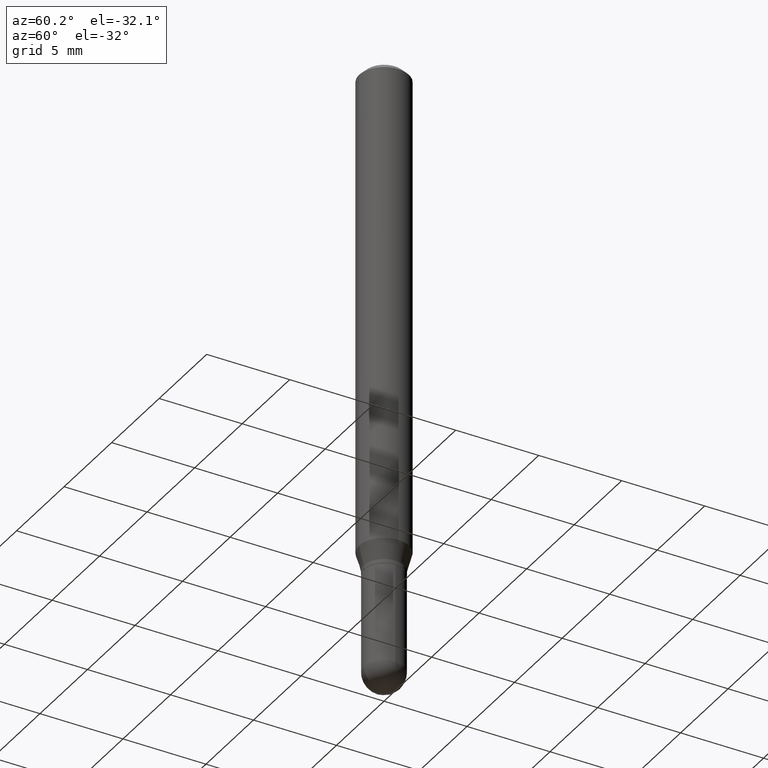
[diagram: clean part render]
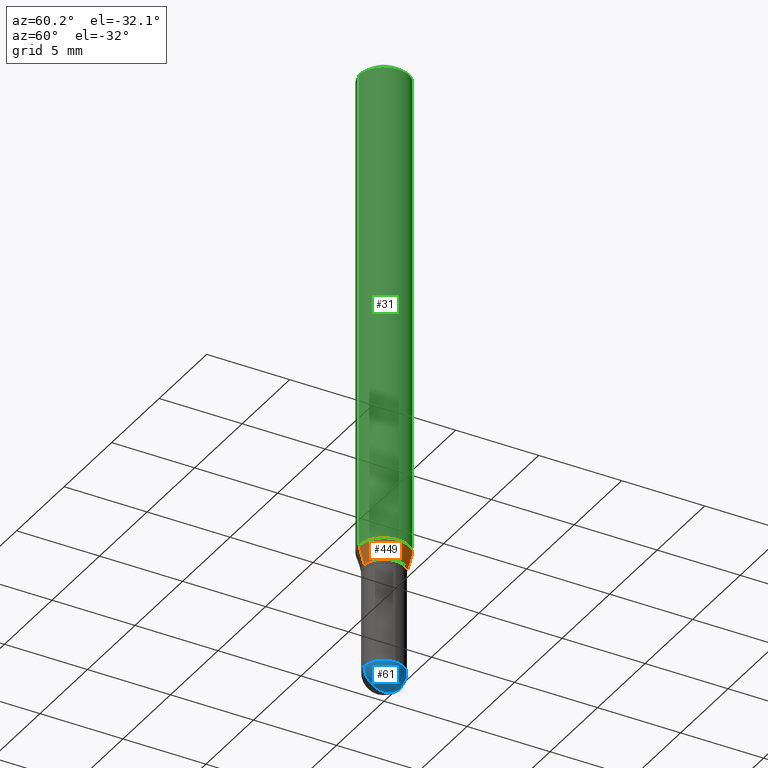
[diagram: same view with three faces highlighted in distinct colors, each labeled with its STEP entity id]
A machine part, auxiliary view with three faces highlighted in distinct colors.
Their STEP definitions:

[orange] entity #449 — the highlighted conical surface has half-angle 15 deg.
#8 = VERTEX_POINT ( 'NONE', #29 ) ;
#29 = CARTESIAN_POINT ( 'NONE',  ( 3.776534640565222593E-16, 0.04724999999999585781, -1.202600000000000113 ) ) ;
#33 = CARTESIAN_POINT ( 'NONE',  ( -4.123439461173456337E-16, -0.05905000000000405758, -1.158561800470687464 ) ) ;
#37 = CARTESIAN_POINT ( 'NONE',  ( -3.299449865206470168E-16, -0.04725000000000425388, -1.202599999999999669 ) ) ;
#53 = DIRECTION ( 'NONE',  ( -6.982962677686265922E-15, -1.000000000000000000, 4.626330217890369336E-15 ) ) ;
#66 = ORIENTED_EDGE ( 'NONE', *, *, #120, .F. ) ;
#93 = CARTESIAN_POINT ( 'NONE',  ( 2.833153081835456762E-29, -4.045202393347182480E-15, -1.158561800470687464 ) ) ;
#95 = VERTEX_POINT ( 'NONE', #37 ) ;
#96 = CARTESIAN_POINT ( 'NONE',  ( 2.940844325120249058E-29, -4.198964954880197857E-15, -1.202599999999999891 ) ) ;
#108 = AXIS2_PLACEMENT_3D ( 'NONE', #157, #222, #333 ) ;
#118 = VECTOR ( 'NONE', #335, 39.37007874015748854 ) ;
#120 = EDGE_CURVE ( 'NONE', #95, #282, #403, .T. ) ;
#140 = CARTESIAN_POINT ( 'NONE',  ( 3.357314426466771197E-16, 0.04724999999999585781, -1.202600000000000113 ) ) ;
#152 = LINE ( 'NONE', #140, #118 ) ;
#157 = CARTESIAN_POINT ( 'NONE',  ( 2.940844325120249058E-29, -4.198964954880197857E-15, -1.202599999999999891 ) ) ;
#165 = CIRCLE ( 'NONE', #108, 0.04725000000000005584 ) ;
#212 = CIRCLE ( 'NONE', #278, 0.05904999999999999832 ) ;
#222 = DIRECTION ( 'NONE',  ( -2.445405226276608487E-29, 3.491572388890901817E-15, 1.000000000000000000 ) ) ;
#238 = CONICAL_SURFACE ( 'NONE', #259, 0.04725000000000005584, 0.2617993877991504625 ) ;
#244 = DIRECTION ( 'NONE',  ( -2.445405226276608487E-29, 3.491572388890901817E-15, 1.000000000000000000 ) ) ;
#259 = AXIS2_PLACEMENT_3D ( 'NONE', #96, #244, #481 ) ;
#278 = AXIS2_PLACEMENT_3D ( 'NONE', #93, #392, #53 ) ;
#282 = VERTEX_POINT ( 'NONE', #33 ) ;
#300 = CARTESIAN_POINT ( 'NONE',  ( -3.299449865206470168E-16, -0.04725000000000425388, -1.202599999999999669 ) ) ;
#307 = CARTESIAN_POINT ( 'NONE',  ( 4.195754854663673496E-16, 0.05904999999999594601, -1.158561800470687686 ) ) ;
#318 = VECTOR ( 'NONE', #503, 39.37007874015748854 ) ;
#329 = EDGE_CURVE ( 'NONE', #95, #8, #165, .T. ) ;
#330 = ORIENTED_EDGE ( 'NONE', *, *, #329, .T. ) ;
#333 = DIRECTION ( 'NONE',  ( -6.982962677686265922E-15, -1.000000000000000000, 2.890844437739957528E-15 ) ) ;
#335 = DIRECTION ( 'NONE',  ( 1.839019923739601499E-15, 0.2588190451025251249, 0.9659258262890670910 ) ) ;
#336 = VERTEX_POINT ( 'NONE', #307 ) ;
#355 = FACE_OUTER_BOUND ( 'NONE', #365, .T. ) ;
#365 = EDGE_LOOP ( 'NONE', ( #330, #373, #455, #66 ) ) ;
#373 = ORIENTED_EDGE ( 'NONE', *, *, #426, .T. ) ;
#392 = DIRECTION ( 'NONE',  ( -2.445405226276608487E-29, 3.491572388890901817E-15, 1.000000000000000000 ) ) ;
#403 = LINE ( 'NONE', #300, #318 ) ;
#426 = EDGE_CURVE ( 'NONE', #8, #336, #152, .T. ) ;
#449 = ADVANCED_FACE ( 'NONE', ( #355 ), #238, .T. ) ;
#455 = ORIENTED_EDGE ( 'NONE', *, *, #504, .F. ) ;
#481 = DIRECTION ( 'NONE',  ( -6.982962677686265922E-15, -1.000000000000000000, 2.890844437739957528E-15 ) ) ;
#503 = DIRECTION ( 'NONE',  ( -1.807323732225331323E-15, -0.2588190451025183525, 0.9659258262890689783 ) ) ;
#504 = EDGE_CURVE ( 'NONE', #282, #336, #212, .T. ) ;

[blue] entity #61 — the highlighted spherical surface has radius 1.2001 mm.
#48 = CIRCLE ( 'NONE', #285, 0.04724999999999998646 ) ;
#52 = FACE_OUTER_BOUND ( 'NONE', #166, .T. ) ;
#54 = CIRCLE ( 'NONE', #151, 0.04724999999999979911 ) ;
#56 = CARTESIAN_POINT ( 'NONE',  ( 3.539076819124962473E-29, -5.064419193908863088E-15, -1.448849999999999971 ) ) ;
#57 = SPHERICAL_SURFACE ( 'NONE', #164, 0.04724999999999979911 ) ;
#61 = ADVANCED_FACE ( 'NONE', ( #52 ), #57, .T. ) ;
#71 = AXIS2_PLACEMENT_3D ( 'NONE', #56, #440, #175 ) ;
#74 = VERTEX_POINT ( 'NONE', #457 ) ;
#81 = EDGE_CURVE ( 'NONE', #267, #74, #48, .T. ) ;
#83 = AXIS2_PLACEMENT_3D ( 'NONE', #379, #374, #387 ) ;
#112 = CARTESIAN_POINT ( 'NONE',  ( 3.539076819124962473E-29, -5.064419193908863088E-15, -1.448849999999999971 ) ) ;
#119 = CARTESIAN_POINT ( 'NONE',  ( 0.04724999999999998646, -4.976146491152720682E-15, -1.448849999999999971 ) ) ;
#151 = AXIS2_PLACEMENT_3D ( 'NONE', #112, #264, #417 ) ;
#164 = AXIS2_PLACEMENT_3D ( 'NONE', #382, #510, #368 ) ;
#166 = EDGE_LOOP ( 'NONE', ( #416, #273, #395, #315 ) ) ;
#175 = DIRECTION ( 'NONE',  ( -6.982962677686265922E-15, -1.000000000000000000, 0.000000000000000000 ) ) ;
#223 = DIRECTION ( 'NONE',  ( 1.000000000000000000, -6.982962677686267499E-15, 0.000000000000000000 ) ) ;
#225 = VERTEX_POINT ( 'NONE', #234 ) ;
#234 = CARTESIAN_POINT ( 'NONE',  ( 3.652604889859023213E-29, -5.232284915232186807E-15, -1.496099999999999985 ) ) ;
#264 = DIRECTION ( 'NONE',  ( 1.000000000000000000, -7.105427357601001070E-15, 4.926315508542082329E-29 ) ) ;
#267 = VERTEX_POINT ( 'NONE', #119 ) ;
#268 = DIRECTION ( 'NONE',  ( -2.445468806185136597E-29, 3.491481338843145583E-15, 1.000000000000000000 ) ) ;
#269 = EDGE_CURVE ( 'NONE', #490, #267, #446, .T. ) ;
#273 = ORIENTED_EDGE ( 'NONE', *, *, #348, .T. ) ;
#285 = AXIS2_PLACEMENT_3D ( 'NONE', #500, #268, #223 ) ;
#314 = CIRCLE ( 'NONE', #71, 0.04724999999999979911 ) ;
#315 = ORIENTED_EDGE ( 'NONE', *, *, #269, .F. ) ;
#348 = EDGE_CURVE ( 'NONE', #225, #74, #54, .T. ) ;
#368 = DIRECTION ( 'NONE',  ( -6.982962677686265922E-15, -1.000000000000000000, 5.781688875479946610E-15 ) ) ;
#374 = DIRECTION ( 'NONE',  ( -2.445468806185136597E-29, 3.491481338843145583E-15, 1.000000000000000000 ) ) ;
#379 = CARTESIAN_POINT ( 'NONE',  ( 3.543117479841335070E-29, -5.058632737782891656E-15, -1.448849999999999971 ) ) ;
#382 = CARTESIAN_POINT ( 'NONE',  ( 3.539076819124962473E-29, -5.064419193908863088E-15, -1.448849999999999971 ) ) ;
#387 = DIRECTION ( 'NONE',  ( 1.000000000000000000, -6.982962677686267499E-15, 0.000000000000000000 ) ) ;
#395 = ORIENTED_EDGE ( 'NONE', *, *, #81, .F. ) ;
#416 = ORIENTED_EDGE ( 'NONE', *, *, #441, .F. ) ;
#417 = DIRECTION ( 'NONE',  ( 7.105427357601001070E-15, 1.000000000000000000, 0.000000000000000000 ) ) ;
#436 = CARTESIAN_POINT ( 'NONE',  ( -3.299449865206399170E-16, -0.04725000000000495470, -1.448849999999999749 ) ) ;
#440 = DIRECTION ( 'NONE',  ( -1.000000000000000000, 6.982962677686265922E-15, -4.883557194083112340E-29 ) ) ;
#441 = EDGE_CURVE ( 'NONE', #225, #490, #314, .T. ) ;
#446 = CIRCLE ( 'NONE', #83, 0.04724999999999998646 ) ;
#457 = CARTESIAN_POINT ( 'NONE',  ( 3.357314426466819515E-16, 0.04724999999999483086, -1.448850000000000415 ) ) ;
#490 = VERTEX_POINT ( 'NONE', #436 ) ;
#500 = CARTESIAN_POINT ( 'NONE',  ( 3.543117479841335070E-29, -5.058632737782891656E-15, -1.448849999999999971 ) ) ;
#510 = DIRECTION ( 'NONE',  ( 1.000000000000000000, -6.982962677686265922E-15, 4.883557194083112901E-29 ) ) ;

[green] entity #31 — the highlighted cylindrical surface (edge-blend (fillet) strip) has radius 1.4999 mm, axis along (-0, 0, 1).
#1 = DIRECTION ( 'NONE',  ( -2.445405226276608487E-29, 3.491572388890901817E-15, 1.000000000000000000 ) ) ;
#13 = LINE ( 'NONE', #483, #124 ) ;
#15 = CARTESIAN_POINT ( 'NONE',  ( -4.123439461173736383E-16, -0.05905000000000005383, -0.01499999999999981730 ) ) ;
#19 = DIRECTION ( 'NONE',  ( -2.445405226276608768E-29, 3.491572388890901817E-15, 1.000000000000000000 ) ) ;
#20 = DIRECTION ( 'NONE',  ( -2.445405226276608487E-29, 3.491572388890901817E-15, 1.000000000000000000 ) ) ;
#28 = LINE ( 'NONE', #184, #448 ) ;
#31 = ADVANCED_FACE ( 'NONE', ( #98 ), #250, .T. ) ;
#33 = CARTESIAN_POINT ( 'NONE',  ( -4.123439461173456337E-16, -0.05905000000000405758, -1.158561800470687464 ) ) ;
#39 = AXIS2_PLACEMENT_3D ( 'NONE', #341, #1, #461 ) ;
#53 = DIRECTION ( 'NONE',  ( -6.982962677686265922E-15, -1.000000000000000000, 4.626330217890369336E-15 ) ) ;
#58 = ORIENTED_EDGE ( 'NONE', *, *, #463, .F. ) ;
#65 = CARTESIAN_POINT ( 'NONE',  ( 0.000000000000000000, 0.000000000000000000, 0.000000000000000000 ) ) ;
#80 = DIRECTION ( 'NONE',  ( -2.445405226276608768E-29, 3.491572388890901817E-15, 1.000000000000000000 ) ) ;
#87 = CARTESIAN_POINT ( 'NONE',  ( 4.195754854663675961E-16, 0.05904999999999994281, -0.01500000000000023016 ) ) ;
#93 = CARTESIAN_POINT ( 'NONE',  ( 2.833153081835456762E-29, -4.045202393347182480E-15, -1.158561800470687464 ) ) ;
#98 = FACE_OUTER_BOUND ( 'NONE', #378, .T. ) ;
#111 = ORIENTED_EDGE ( 'NONE', *, *, #504, .T. ) ;
#124 = VECTOR ( 'NONE', #19, 39.37007874015748143 ) ;
#129 = CIRCLE ( 'NONE', #39, 0.05904999999999999832 ) ;
#134 = ORIENTED_EDGE ( 'NONE', *, *, #385, .T. ) ;
#184 = CARTESIAN_POINT ( 'NONE',  ( 4.195754854663390985E-16, 0.05904999999999999832, -2.061773495640077583E-16 ) ) ;
#212 = CIRCLE ( 'NONE', #278, 0.05904999999999999832 ) ;
#250 = CYLINDRICAL_SURFACE ( 'NONE', #370, 0.05904999999999999832 ) ;
#278 = AXIS2_PLACEMENT_3D ( 'NONE', #93, #392, #53 ) ;
#282 = VERTEX_POINT ( 'NONE', #33 ) ;
#294 = ORIENTED_EDGE ( 'NONE', *, *, #316, .F. ) ;
#302 = VERTEX_POINT ( 'NONE', #87 ) ;
#307 = CARTESIAN_POINT ( 'NONE',  ( 4.195754854663673496E-16, 0.05904999999999594601, -1.158561800470687686 ) ) ;
#316 = EDGE_CURVE ( 'NONE', #499, #302, #129, .T. ) ;
#323 = DIRECTION ( 'NONE',  ( -6.982962677686265922E-15, -1.000000000000000000, 3.491572388890902212E-15 ) ) ;
#336 = VERTEX_POINT ( 'NONE', #307 ) ;
#341 = CARTESIAN_POINT ( 'NONE',  ( 3.668107839414918214E-31, -5.237358583336361453E-17, -0.01500000000000002373 ) ) ;
#370 = AXIS2_PLACEMENT_3D ( 'NONE', #65, #20, #323 ) ;
#378 = EDGE_LOOP ( 'NONE', ( #111, #134, #294, #58 ) ) ;
#385 = EDGE_CURVE ( 'NONE', #336, #302, #28, .T. ) ;
#392 = DIRECTION ( 'NONE',  ( -2.445405226276608487E-29, 3.491572388890901817E-15, 1.000000000000000000 ) ) ;
#448 = VECTOR ( 'NONE', #80, 39.37007874015748143 ) ;
#461 = DIRECTION ( 'NONE',  ( -6.982962677686265922E-15, -1.000000000000000000, 3.505890868245046092E-15 ) ) ;
#463 = EDGE_CURVE ( 'NONE', #282, #499, #13, .T. ) ;
#483 = CARTESIAN_POINT ( 'NONE',  ( -4.123439461173739834E-16, -0.05904999999999999832, 2.061773495640077583E-16 ) ) ;
#499 = VERTEX_POINT ( 'NONE', #15 ) ;
#504 = EDGE_CURVE ( 'NONE', #282, #336, #212, .T. ) ;